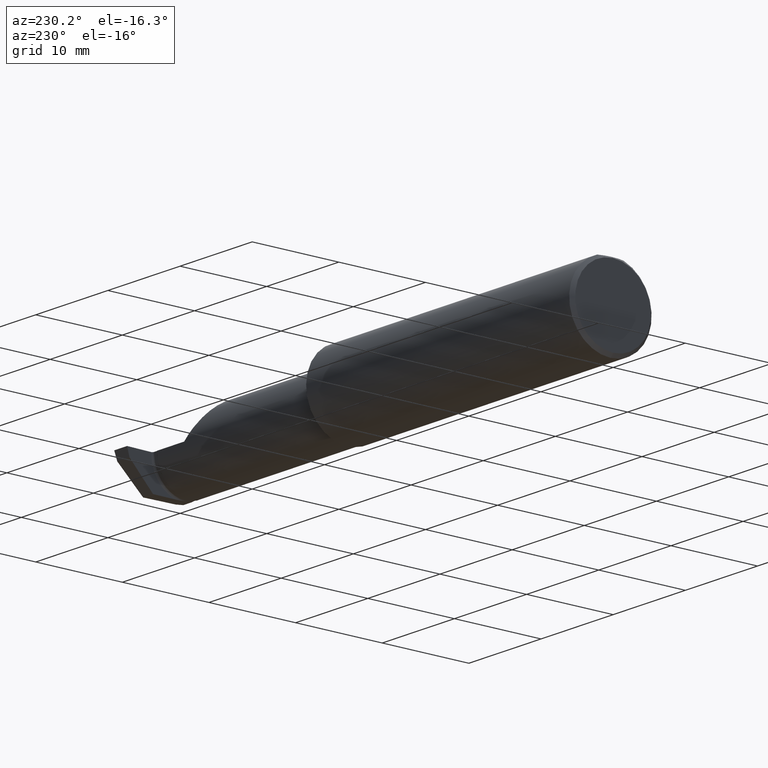
[diagram: clean part render]
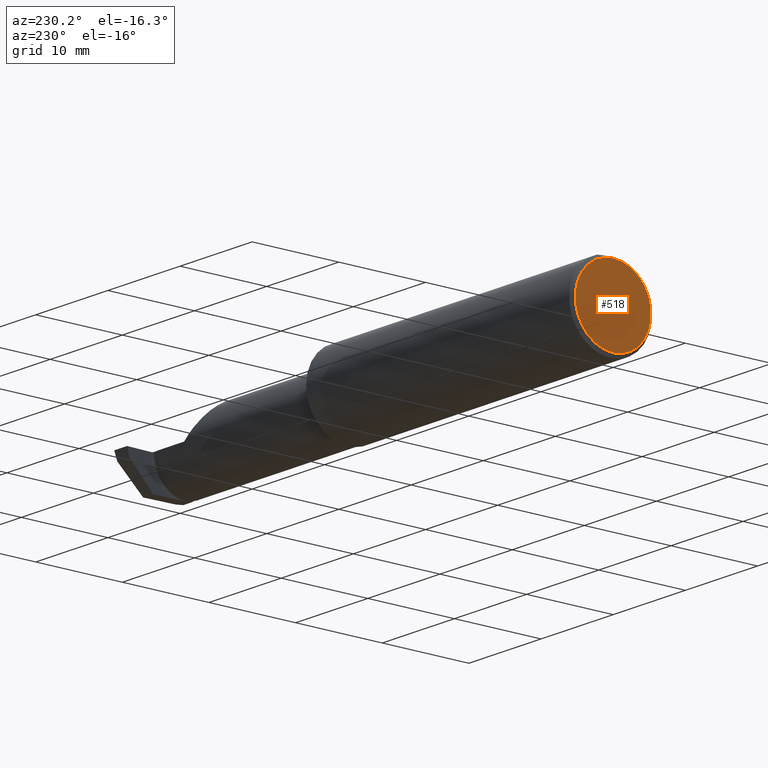
[diagram: same view with one face highlighted and labeled with its STEP entity id]
A machine part, auxiliary view. The second image highlights one B-rep face of the part: STEP entity #518.
In plain terms, the highlighted planar face has unit normal (1, 0, 0).
Its self-contained STEP definition (entity closure, byte-faithful):
#5 = DIRECTION ( 'NONE',  ( 0.000000000000000000, 0.000000000000000000, -1.000000000000000000 ) ) ;
#13 = AXIS2_PLACEMENT_3D ( 'NONE', #613, #999, #305 ) ;
#60 = AXIS2_PLACEMENT_3D ( 'NONE', #339, #800, #505 ) ;
#107 = CIRCLE ( 'NONE', #13, 0.1723499999999999754 ) ;
#158 = FACE_OUTER_BOUND ( 'NONE', #749, .T. ) ;
#161 = DIRECTION ( 'NONE',  ( 1.000000000000000000, 0.000000000000000000, 0.000000000000000000 ) ) ;
#162 = CIRCLE ( 'NONE', #60, 0.1723499999999999754 ) ;
#220 = PLANE ( 'NONE',  #801 ) ;
#225 = CARTESIAN_POINT ( 'NONE',  ( 0.000000000000000000, 2.202527268266524596E-17, 0.1723499999999999754 ) ) ;
#269 = EDGE_CURVE ( 'NONE', #654, #468, #162, .T. ) ;
#305 = DIRECTION ( 'NONE',  ( 0.000000000000000000, 0.000000000000000000, 1.000000000000000000 ) ) ;
#334 = EDGE_CURVE ( 'NONE', #468, #654, #107, .T. ) ;
#339 = CARTESIAN_POINT ( 'NONE',  ( 0.000000000000000000, 0.000000000000000000, 0.000000000000000000 ) ) ;
#468 = VERTEX_POINT ( 'NONE', #225 ) ;
#505 = DIRECTION ( 'NONE',  ( 0.000000000000000000, 0.000000000000000000, 1.000000000000000000 ) ) ;
#518 = ADVANCED_FACE ( 'NONE', ( #158 ), #220, .F. ) ;
#555 = ORIENTED_EDGE ( 'NONE', *, *, #334, .T. ) ;
#576 = CARTESIAN_POINT ( 'NONE',  ( 0.000000000000000000, 0.000000000000000000, -0.1723499999999999754 ) ) ;
#583 = ORIENTED_EDGE ( 'NONE', *, *, #269, .T. ) ;
#613 = CARTESIAN_POINT ( 'NONE',  ( 0.000000000000000000, 0.000000000000000000, 0.000000000000000000 ) ) ;
#654 = VERTEX_POINT ( 'NONE', #576 ) ;
#749 = EDGE_LOOP ( 'NONE', ( #583, #555 ) ) ;
#800 = DIRECTION ( 'NONE',  ( -1.000000000000000000, -0.000000000000000000, -0.000000000000000000 ) ) ;
#801 = AXIS2_PLACEMENT_3D ( 'NONE', #884, #161, #5 ) ;
#884 = CARTESIAN_POINT ( 'NONE',  ( 0.000000000000000000, 0.000000000000000000, 0.000000000000000000 ) ) ;
#999 = DIRECTION ( 'NONE',  ( -1.000000000000000000, -0.000000000000000000, -0.000000000000000000 ) ) ;